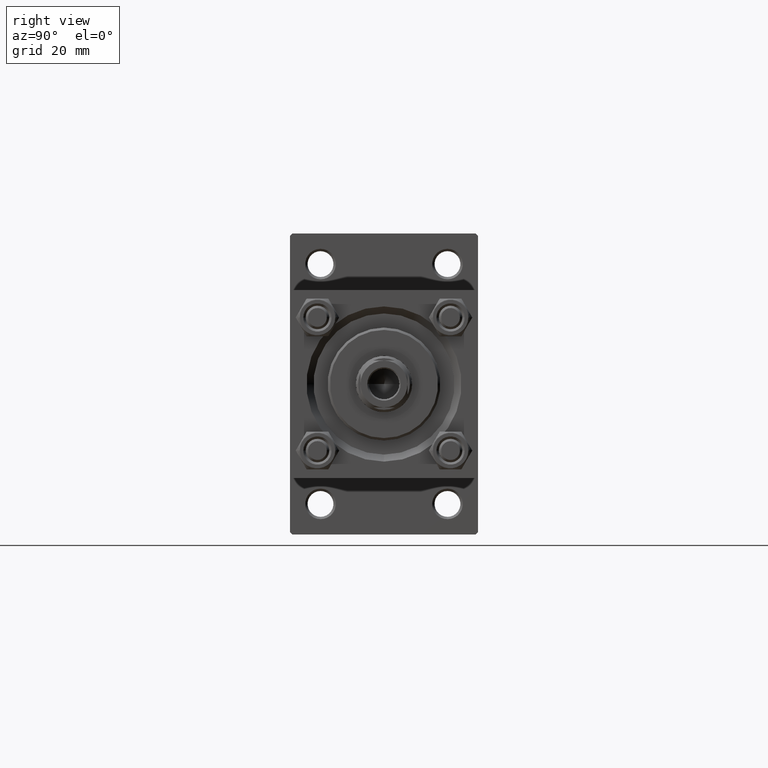
[diagram: clean part render]
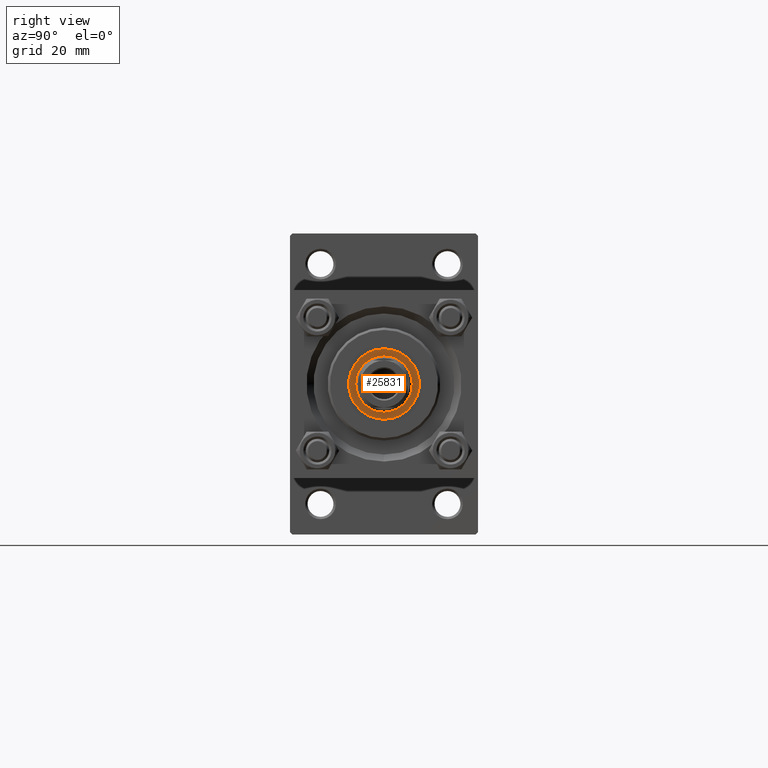
[diagram: same view with one face highlighted and labeled with its STEP entity id]
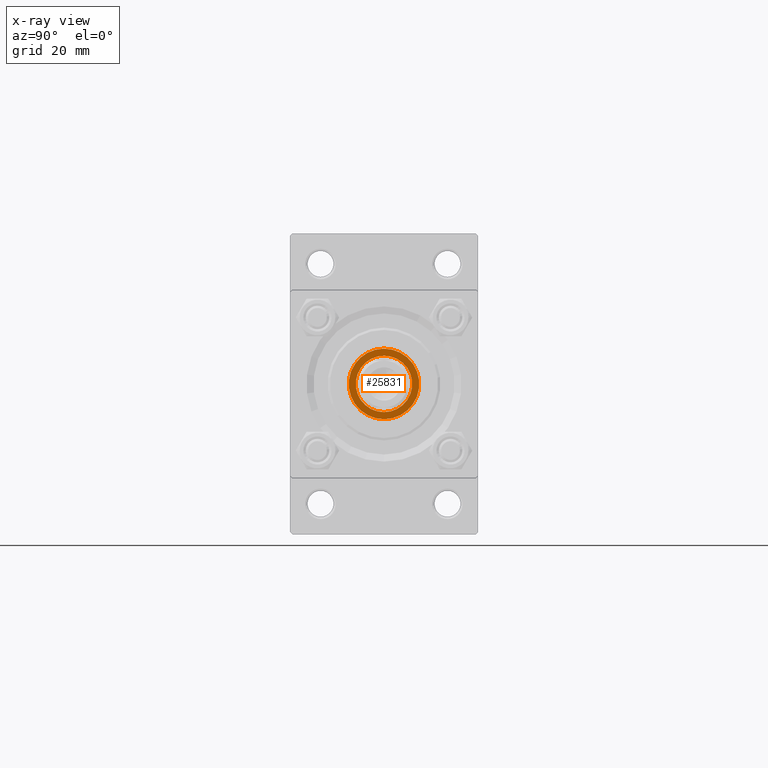
[diagram: x-ray of the same camera — body ghosted, the highlighted face saturated]
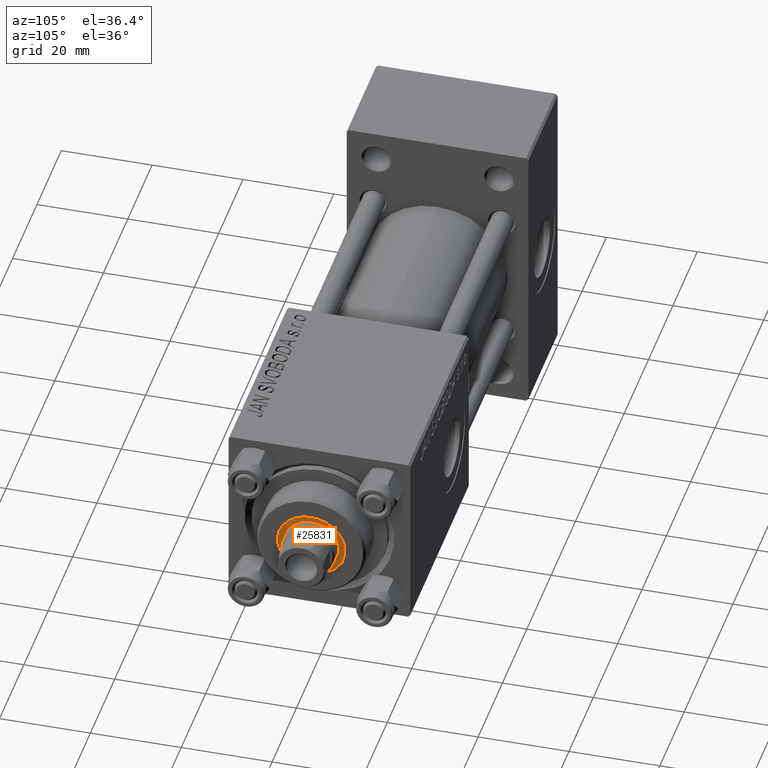
[diagram: same view with one face highlighted and labeled with its STEP entity id]
A machine part, right view. The second image highlights one B-rep face of the part: STEP entity #25831.
The next image is the same camera in x-ray: the body ghosted, the highlighted face saturated — about 0% of this face is hidden behind the body in this view.
A second angle (auxiliary view) of the same face is appended — the face is thin or edge-on in the first view.
In plain terms, the highlighted planar face has unit normal (1, 0, 0).
Its self-contained STEP definition (entity closure, byte-faithful):
#281 = AXIS2_PLACEMENT_3D ( 'NONE', #7590, #22992, #38355 ) ;
#1251 = CARTESIAN_POINT ( 'NONE',  ( -7.500000000000000888, 9.184850993605149917E-16, 35.20000000000000284 ) ) ;
#1973 = DIRECTION ( 'NONE',  ( 1.000000000000000000, 0.000000000000000000, 0.000000000000000000 ) ) ;
#7216 = EDGE_CURVE ( 'NONE', #46588, #7640, #31604, .T. ) ;
#7590 = CARTESIAN_POINT ( 'NONE',  ( 0.000000000000000000, 0.000000000000000000, 35.20000000000000284 ) ) ;
#7640 = VERTEX_POINT ( 'NONE', #16470 ) ;
#7954 = DIRECTION ( 'NONE',  ( -0.000000000000000000, -0.000000000000000000, -1.000000000000000000 ) ) ;
#8116 = EDGE_CURVE ( 'NONE', #32840, #45291, #27647, .T. ) ;
#10340 = EDGE_LOOP ( 'NONE', ( #44444, #23910 ) ) ;
#10359 = ORIENTED_EDGE ( 'NONE', *, *, #8116, .T. ) ;
#11320 = EDGE_CURVE ( 'NONE', #45291, #32840, #15632, .T. ) ;
#14452 = DIRECTION ( 'NONE',  ( 0.000000000000000000, 0.000000000000000000, 1.000000000000000000 ) ) ;
#14708 = CARTESIAN_POINT ( 'NONE',  ( 0.000000000000000000, 0.000000000000000000, 35.20000000000000284 ) ) ;
#15632 = CIRCLE ( 'NONE', #281, 7.500000000000000888 ) ;
#16470 = CARTESIAN_POINT ( 'NONE',  ( 6.000000000000000888, 0.000000000000000000, 35.20000000000000284 ) ) ;
#17199 = CARTESIAN_POINT ( 'NONE',  ( 0.000000000000000000, 0.000000000000000000, 35.20000000000000284 ) ) ;
#17692 = DIRECTION ( 'NONE',  ( -0.000000000000000000, -0.000000000000000000, -1.000000000000000000 ) ) ;
#19811 = DIRECTION ( 'NONE',  ( 1.000000000000000000, 0.000000000000000000, 0.000000000000000000 ) ) ;
#21163 = CARTESIAN_POINT ( 'NONE',  ( 0.000000000000000000, 0.000000000000000000, 35.20000000000000284 ) ) ;
#21613 = AXIS2_PLACEMENT_3D ( 'NONE', #14708, #14452, #40928 ) ;
#22992 = DIRECTION ( 'NONE',  ( 0.000000000000000000, 0.000000000000000000, 1.000000000000000000 ) ) ;
#23910 = ORIENTED_EDGE ( 'NONE', *, *, #7216, .T. ) ;
#24120 = EDGE_CURVE ( 'NONE', #7640, #46588, #34467, .T. ) ;
#25552 = PLANE ( 'NONE',  #21613 ) ;
#25831 = ADVANCED_FACE ( 'NONE', ( #37869, #49246 ), #25552, .T. ) ;
#27647 = CIRCLE ( 'NONE', #28440, 7.500000000000000888 ) ;
#27883 = CARTESIAN_POINT ( 'NONE',  ( 0.000000000000000000, 0.000000000000000000, 35.20000000000000284 ) ) ;
#28234 = DIRECTION ( 'NONE',  ( 0.000000000000000000, 0.000000000000000000, 1.000000000000000000 ) ) ;
#28440 = AXIS2_PLACEMENT_3D ( 'NONE', #21163, #28234, #1973 ) ;
#31604 = CIRCLE ( 'NONE', #43694, 6.000000000000000888 ) ;
#32281 = ORIENTED_EDGE ( 'NONE', *, *, #11320, .T. ) ;
#32840 = VERTEX_POINT ( 'NONE', #1251 ) ;
#34467 = CIRCLE ( 'NONE', #42529, 6.000000000000000888 ) ;
#37869 = FACE_OUTER_BOUND ( 'NONE', #41956, .T. ) ;
#38355 = DIRECTION ( 'NONE',  ( 1.000000000000000000, 0.000000000000000000, 0.000000000000000000 ) ) ;
#40052 = CARTESIAN_POINT ( 'NONE',  ( 7.500000000000000888, 0.000000000000000000, 35.20000000000000284 ) ) ;
#40928 = DIRECTION ( 'NONE',  ( 1.000000000000000000, 0.000000000000000000, -0.000000000000000000 ) ) ;
#41956 = EDGE_LOOP ( 'NONE', ( #32281, #10359 ) ) ;
#42529 = AXIS2_PLACEMENT_3D ( 'NONE', #17199, #17692, #47969 ) ;
#43203 = CARTESIAN_POINT ( 'NONE',  ( -6.000000000000000888, 7.347880794884119736E-16, 35.20000000000000284 ) ) ;
#43694 = AXIS2_PLACEMENT_3D ( 'NONE', #27883, #7954, #19811 ) ;
#44444 = ORIENTED_EDGE ( 'NONE', *, *, #24120, .T. ) ;
#45291 = VERTEX_POINT ( 'NONE', #40052 ) ;
#46588 = VERTEX_POINT ( 'NONE', #43203 ) ;
#47969 = DIRECTION ( 'NONE',  ( 1.000000000000000000, 0.000000000000000000, 0.000000000000000000 ) ) ;
#49246 = FACE_BOUND ( 'NONE', #10340, .T. ) ;